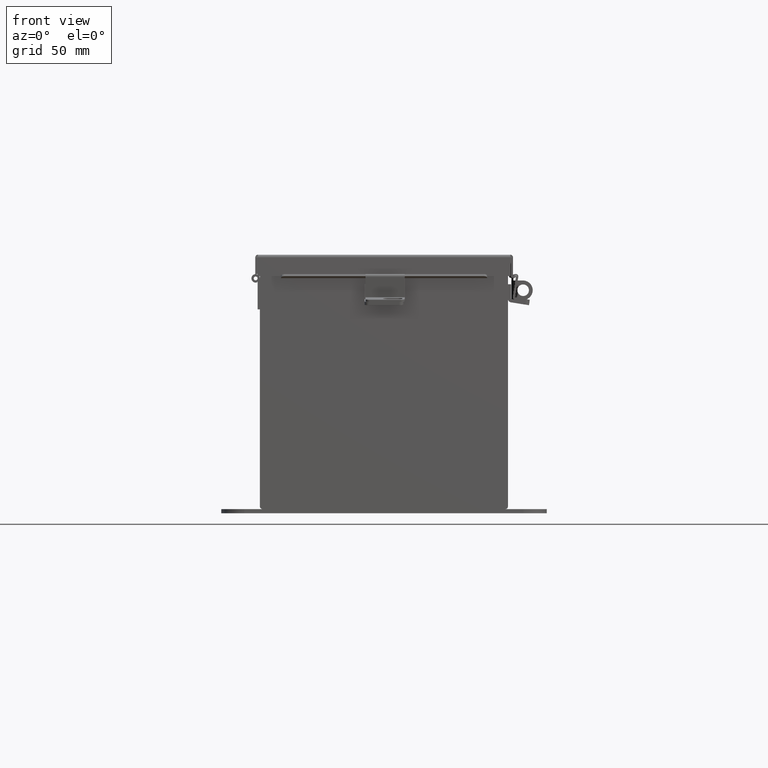
[diagram: clean part render]
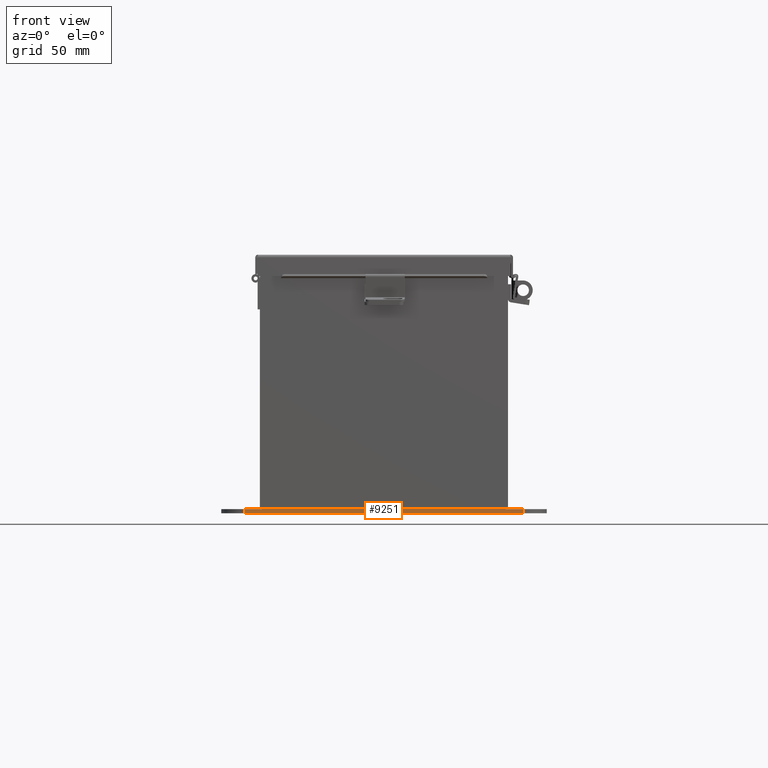
[diagram: same view with one face highlighted and labeled with its STEP entity id]
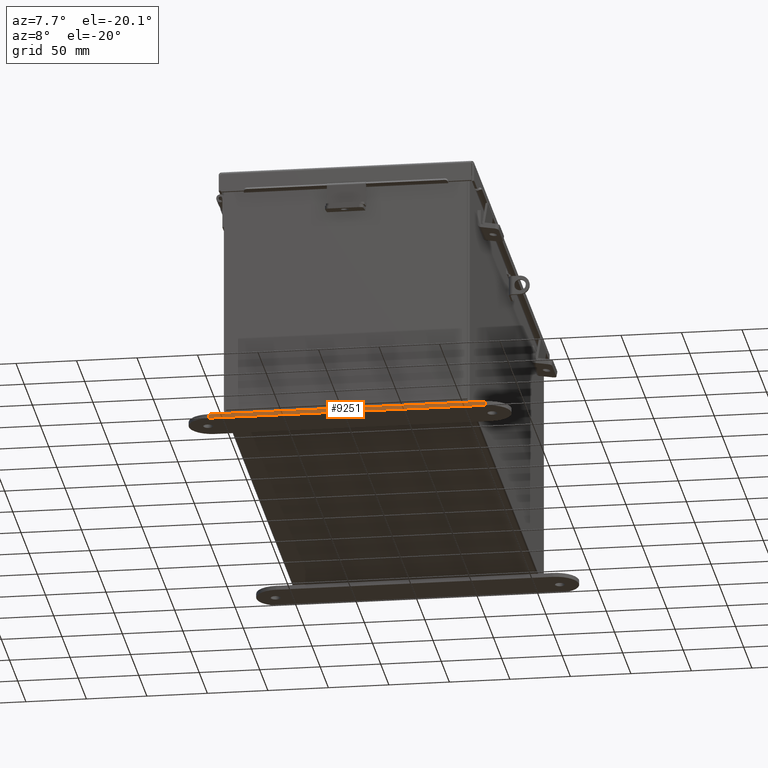
[diagram: same view with one face highlighted and labeled with its STEP entity id]
A machine part, front view. The second image highlights one B-rep face of the part: STEP entity #9251.
A second angle (auxiliary view) of the same face is appended — the face is thin or edge-on in the first view.
In plain terms, the highlighted planar face has unit normal (-0, -1, 0).
Its self-contained STEP definition (entity closure, byte-faithful):
#49 = VECTOR ( 'NONE', #17530, 39.37007874015748100 ) ;
#69 = CARTESIAN_POINT ( 'NONE',  ( 4.499999999999999100, -0.3379059350503885700, 0.0000000000000000000 ) ) ;
#168 = EDGE_CURVE ( 'NONE', #16734, #15308, #1047, .T. ) ;
#179 = EDGE_LOOP ( 'NONE', ( #15559, #15914, #13085, #5638 ) ) ;
#189 = CARTESIAN_POINT ( 'NONE',  ( -4.499999999999999100, -0.3379059350503874600, 0.0000000000000000000 ) ) ;
#831 = EDGE_CURVE ( 'NONE', #10501, #15308, #2710, .T. ) ;
#1047 = LINE ( 'NONE', #189, #9014 ) ;
#2440 = DIRECTION ( 'NONE',  ( 1.000000000000000000, -1.214154663850783900E-016, 0.0000000000000000000 ) ) ;
#2710 = LINE ( 'NONE', #7945, #9738 ) ;
#4178 = EDGE_CURVE ( 'NONE', #16915, #16734, #4438, .T. ) ;
#4438 = LINE ( 'NONE', #5632, #49 ) ;
#5037 = AXIS2_PLACEMENT_3D ( 'NONE', #12812, #11383, #2440 ) ;
#5214 = CARTESIAN_POINT ( 'NONE',  ( -4.499999999999999100, -0.3379059350503874600, 0.0000000000000000000 ) ) ;
#5578 = DIRECTION ( 'NONE',  ( 1.000000000000000000, -1.214154663850783900E-016, 0.0000000000000000000 ) ) ;
#5618 = FACE_OUTER_BOUND ( 'NONE', #179, .T. ) ;
#5632 = CARTESIAN_POINT ( 'NONE',  ( -4.499999999999999100, -0.3379059350503874600, -0.1345000000000000100 ) ) ;
#5638 = ORIENTED_EDGE ( 'NONE', *, *, #831, .T. ) ;
#7945 = CARTESIAN_POINT ( 'NONE',  ( 4.499999999999999100, -0.3379059350503885700, -0.1345000000000000100 ) ) ;
#8395 = PLANE ( 'NONE',  #5037 ) ;
#9014 = VECTOR ( 'NONE', #10621, 39.37007874015748100 ) ;
#9251 = ADVANCED_FACE ( 'NONE', ( #5618 ), #8395, .T. ) ;
#9420 = CARTESIAN_POINT ( 'NONE',  ( 4.499999999999999100, -0.3379059350503885700, -0.1345000000000000100 ) ) ;
#9738 = VECTOR ( 'NONE', #15300, 39.37007874015748100 ) ;
#10501 = VERTEX_POINT ( 'NONE', #9420 ) ;
#10621 = DIRECTION ( 'NONE',  ( 1.000000000000000000, -1.214154663850783900E-016, 0.0000000000000000000 ) ) ;
#11283 = CARTESIAN_POINT ( 'NONE',  ( -4.499999999999999100, -0.3379059350503874600, -0.1345000000000000100 ) ) ;
#11383 = DIRECTION ( 'NONE',  ( -1.214154663850783900E-016, -1.000000000000000000, 0.0000000000000000000 ) ) ;
#12812 = CARTESIAN_POINT ( 'NONE',  ( -4.499999999999999100, -0.3379059350503874600, -0.1345000000000000100 ) ) ;
#13085 = ORIENTED_EDGE ( 'NONE', *, *, #13758, .T. ) ;
#13758 = EDGE_CURVE ( 'NONE', #16915, #10501, #18984, .T. ) ;
#15022 = VECTOR ( 'NONE', #5578, 39.37007874015748100 ) ;
#15300 = DIRECTION ( 'NONE',  ( 0.0000000000000000000, 0.0000000000000000000, 1.000000000000000000 ) ) ;
#15308 = VERTEX_POINT ( 'NONE', #69 ) ;
#15559 = ORIENTED_EDGE ( 'NONE', *, *, #168, .F. ) ;
#15914 = ORIENTED_EDGE ( 'NONE', *, *, #4178, .F. ) ;
#16001 = CARTESIAN_POINT ( 'NONE',  ( -4.499999999999999100, -0.3379059350503874600, -0.1345000000000000100 ) ) ;
#16734 = VERTEX_POINT ( 'NONE', #5214 ) ;
#16915 = VERTEX_POINT ( 'NONE', #16001 ) ;
#17530 = DIRECTION ( 'NONE',  ( 0.0000000000000000000, 0.0000000000000000000, 1.000000000000000000 ) ) ;
#18984 = LINE ( 'NONE', #11283, #15022 ) ;